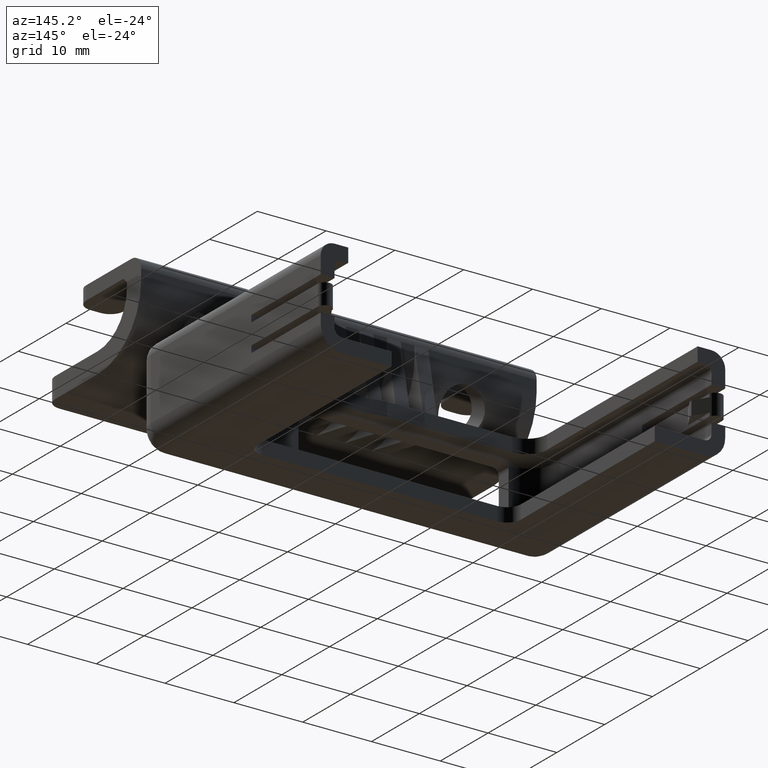
[diagram: clean part render]
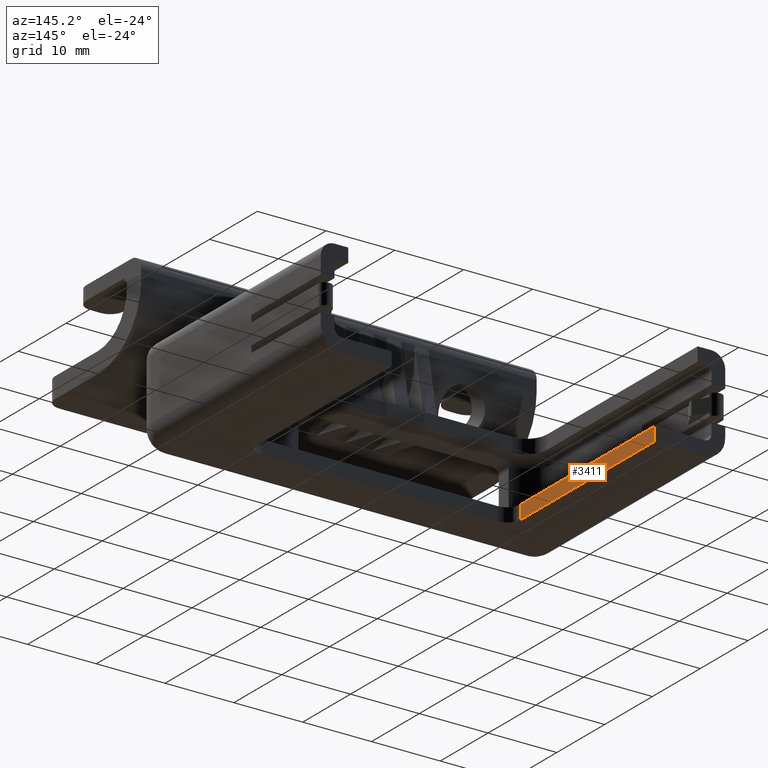
[diagram: same view with one face highlighted and labeled with its STEP entity id]
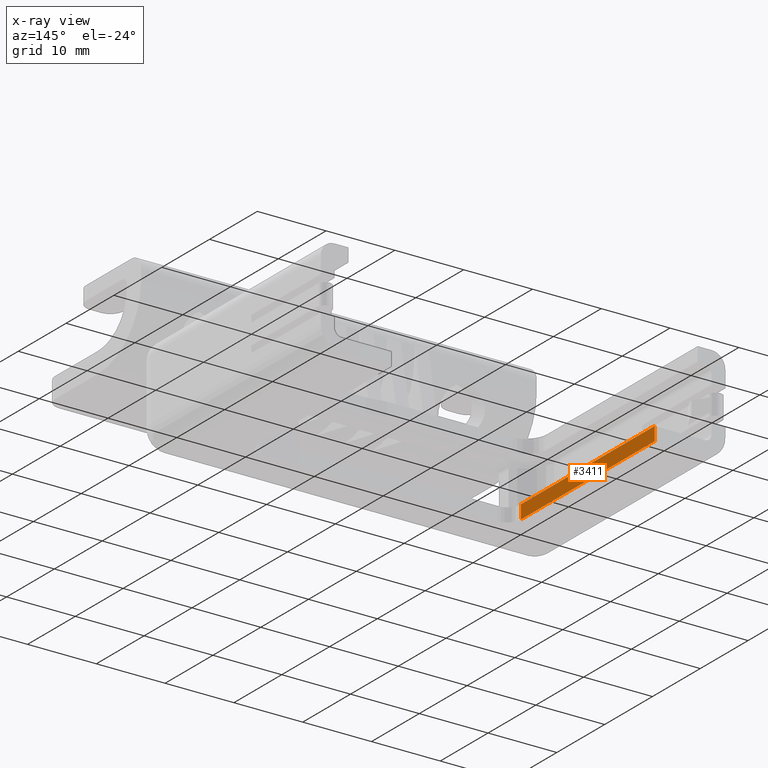
[diagram: x-ray of the same camera — body ghosted, the highlighted face saturated]
A machine part, auxiliary view. The second image highlights one B-rep face of the part: STEP entity #3411.
The next image is the same camera in x-ray: the body ghosted, the highlighted face saturated — about 0% of this face is hidden behind the body in this view.
In plain terms, the highlighted planar face has unit normal (-1, 0, 0).
Its self-contained STEP definition (entity closure, byte-faithful):
#790=VERTEX_POINT('',#4849);
#791=VERTEX_POINT('',#4851);
#807=VERTEX_POINT('',#5131);
#811=VERTEX_POINT('',#5147);
#1079=VECTOR('',#3959,1.);
#1091=VECTOR('',#3984,1.);
#1097=VECTOR('',#3997,1.);
#1098=VECTOR('',#3998,1.);
#1372=LINE('',#4850,#1079);
#1384=LINE('',#5132,#1091);
#1390=LINE('',#5146,#1097);
#1391=LINE('',#5148,#1098);
#1688=EDGE_CURVE('',#790,#791,#1372,.T.);
#1710=EDGE_CURVE('',#807,#790,#1384,.T.);
#1717=EDGE_CURVE('',#811,#807,#1390,.T.);
#1718=EDGE_CURVE('',#791,#811,#1391,.T.);
#2231=ORIENTED_EDGE('',*,*,#1710,.F.);
#2232=ORIENTED_EDGE('',*,*,#1717,.F.);
#2233=ORIENTED_EDGE('',*,*,#1718,.F.);
#2234=ORIENTED_EDGE('',*,*,#1688,.F.);
#3041=EDGE_LOOP('',(#2231,#2232,#2233,#2234));
#3227=FACE_BOUND('',#3041,.T.);
#3411=ADVANCED_FACE('',(#3227),#5977,.F.);
#3613=AXIS2_PLACEMENT_3D('',#5145,#3996,$);
#3959=DIRECTION('',(0.,1.,0.));
#3984=DIRECTION('',(0.,0.,1.));
#3996=DIRECTION('',(-1.,0.,0.));
#3997=DIRECTION('',(0.,-1.,0.));
#3998=DIRECTION('',(0.,0.,-1.));
#4849=CARTESIAN_POINT('',(-1.915,-0.875,0.2));
#4850=CARTESIAN_POINT('',(-1.915,0.2875,0.2));
#4851=CARTESIAN_POINT('',(-1.915,1.925,0.2));
#5131=CARTESIAN_POINT('',(-1.915,-0.875,0.));
#5132=CARTESIAN_POINT('',(-1.915,-0.875,7.25165962272808));
#5145=CARTESIAN_POINT('',(-1.915,0.575,7.25165962272808));
#5146=CARTESIAN_POINT('',(-1.915,0.2875,0.));
#5147=CARTESIAN_POINT('',(-1.915,1.925,0.));
#5148=CARTESIAN_POINT('',(-1.915,1.925,3.62582981136404));
#5977=PLANE('',#3613);